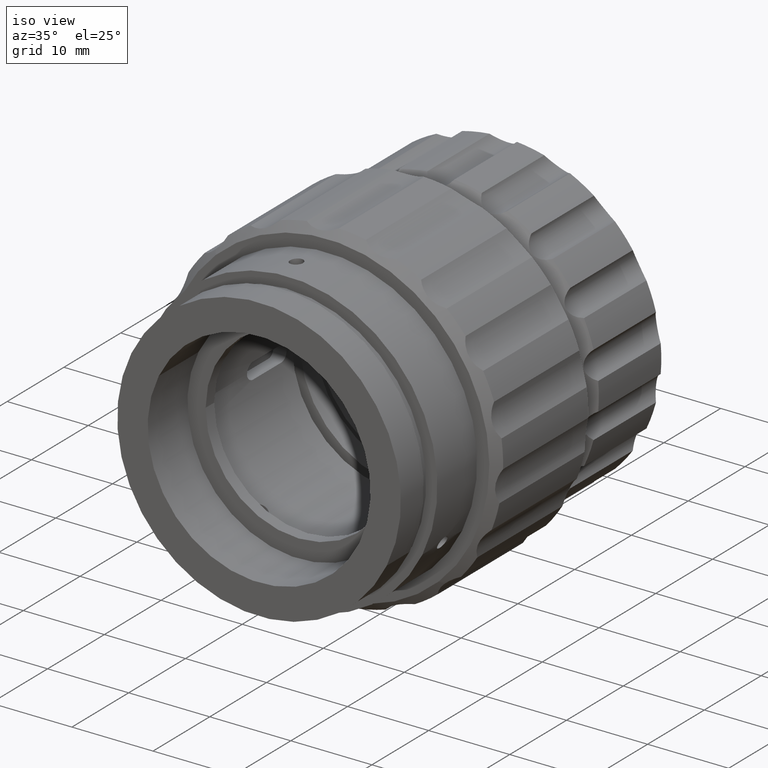
[diagram: clean part render]
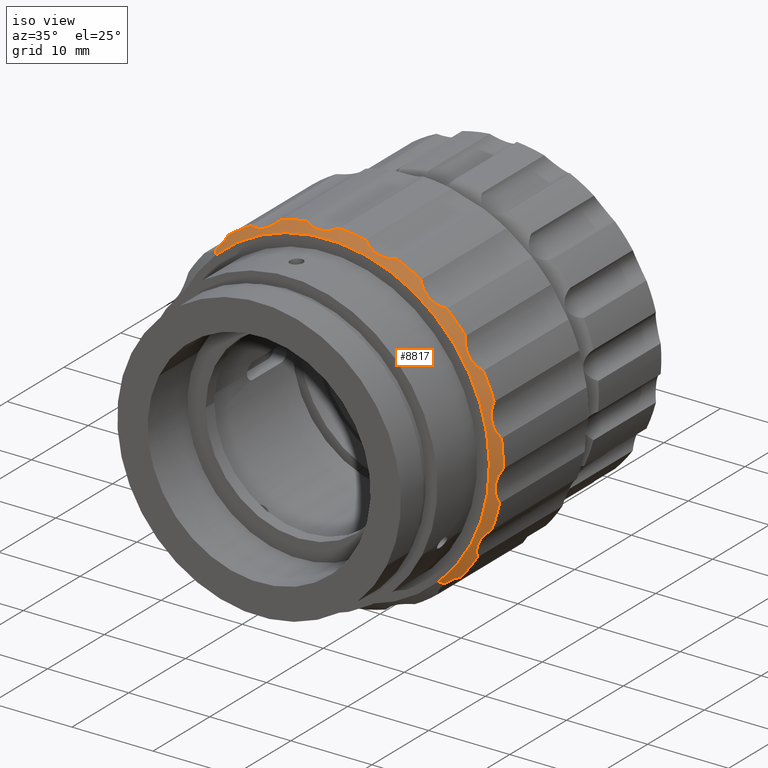
[diagram: same view with one face highlighted and labeled with its STEP entity id]
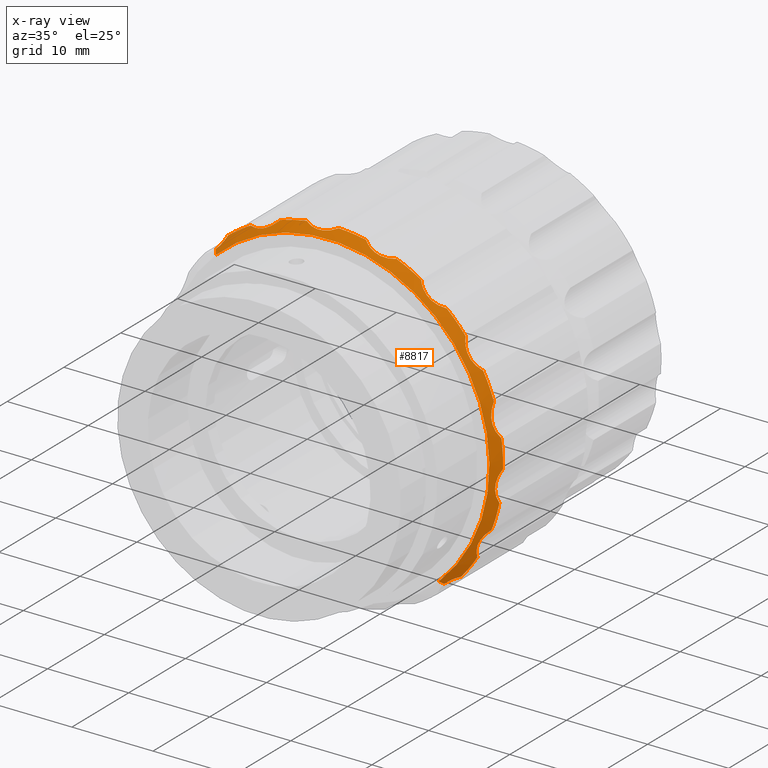
[diagram: x-ray of the same camera — body ghosted, the highlighted face saturated]
A machine part, iso view. The second image highlights one B-rep face of the part: STEP entity #8817.
The next image is the same camera in x-ray: the body ghosted, the highlighted face saturated — about 0% of this face is hidden behind the body in this view.
In plain terms, the highlighted conical surface has half-angle 45 deg.
Its self-contained STEP definition (entity closure, byte-faithful):
#10 = VERTEX_POINT ( 'NONE', #7143 ) ;
#18 = CARTESIAN_POINT ( 'NONE',  ( 26.96714775409374809, -22.54875568700542487, 44.46602370267738280 ) ) ;
#71 = CARTESIAN_POINT ( 'NONE',  ( 24.37982841098757092, -23.04893092694688406, 35.88031151399481189 ) ) ;
#72 = CARTESIAN_POINT ( 'NONE',  ( 21.62445197185772727, -22.62521251149066259, 31.01786103261689576 ) ) ;
#75 = CARTESIAN_POINT ( 'NONE',  ( 23.78273269738049578, -22.54875568700542487, 33.77823788892388279 ) ) ;
#96 = VERTEX_POINT ( 'NONE', #250 ) ;
#122 = CARTESIAN_POINT ( 'NONE',  ( 4.581780144730796422, -23.04893092694689472, 65.35670987261983100 ) ) ;
#147 = DIRECTION ( 'NONE',  ( 0.6871969081691013947, 0.000000000000000000, -0.7264712034229764415 ) ) ;
#169 = CARTESIAN_POINT ( 'NONE',  ( 13.83490158732221609, -22.54875568700542487, 64.37559641720199011 ) ) ;
#195 = CARTESIAN_POINT ( 'NONE',  ( -1.723779831415612751, -23.03084986932621092, 63.92598415447361759 ) ) ;
#222 = CARTESIAN_POINT ( 'NONE',  ( 20.73961185169606125, -22.95820946754227876, 30.55386880338712530 ) ) ;
#225 = CARTESIAN_POINT ( 'NONE',  ( 5.104940113431729820, -23.03694059444923070, 65.39751943230554332 ) ) ;
#250 = CARTESIAN_POINT ( 'NONE',  ( 13.83490158732221609, -22.54875568700542487, 64.37559641720199011 ) ) ;
#271 = CARTESIAN_POINT ( 'NONE',  ( 25.85052689210476018, -22.54875568700542487, 51.67326078198870931 ) ) ;
#293 = EDGE_CURVE ( 'NONE', #9819, #7025, #4316, .T. ) ;
#301 = CARTESIAN_POINT ( 'NONE',  ( 17.66046975826547794, -22.99213833844308752, 61.81416042555461132 ) ) ;
#302 = CARTESIAN_POINT ( 'NONE',  ( -2.009641123701243703, -23.05825398763309053, 63.77830332537708102 ) ) ;
#337 = ORIENTED_EDGE ( 'NONE', *, *, #3122, .T. ) ;
#353 = VERTEX_POINT ( 'NONE', #4032 ) ;
#357 = CARTESIAN_POINT ( 'NONE',  ( 24.15359054204219902, -23.03694059444922004, 35.40683691101386188 ) ) ;
#373 = CARTESIAN_POINT ( 'NONE',  ( 22.73940345115362760, -22.99213833844308752, 56.79651678062787568 ) ) ;
#446 = ORIENTED_EDGE ( 'NONE', *, *, #2005, .T. ) ;
#464 = CARTESIAN_POINT ( 'NONE',  ( 26.35572851109740355, -23.04893092694688761, 42.72041506153360046 ) ) ;
#488 = DIRECTION ( 'NONE',  ( 0.6871969081691013947, 0.000000000000000000, -0.7264712034229764415 ) ) ;
#548 = DIRECTION ( 'NONE',  ( 0.000000000000000000, -1.000000000000000000, -0.000000000000000000 ) ) ;
#680 = CARTESIAN_POINT ( 'NONE',  ( 21.77406639121481646, -22.54875568700542487, 31.07271540608443061 ) ) ;
#728 = AXIS2_PLACEMENT_3D ( 'NONE', #3789, #4500, #2922 ) ;
#765 = CARTESIAN_POINT ( 'NONE',  ( -7.642140704346006785, -22.99220811342353343, 60.30670107188694118 ) ) ;
#779 = CARTESIAN_POINT ( 'NONE',  ( 25.55140787947225434, -22.54875568700542487, 37.31152937573604333 ) ) ;
#782 = CARTESIAN_POINT ( 'NONE',  ( 12.50715101851027455, -22.99173279646783641, 64.39454974554864464 ) ) ;
#842 = AXIS2_PLACEMENT_3D ( 'NONE', #2671, #9758, #1105 ) ;
#905 = CARTESIAN_POINT ( 'NONE',  ( 17.54029753547036208, -22.95871898295860447, 61.93692785366522457 ) ) ;
#927 = CARTESIAN_POINT ( 'NONE',  ( 12.16664585492091000, -23.03694059444923070, 64.45801684555411271 ) ) ;
#928 = CARTESIAN_POINT ( 'NONE',  ( 4.055729949814518065, -22.99213833844308041, 65.37116788638181220 ) ) ;
#950 = CARTESIAN_POINT ( 'NONE',  ( 18.93377057816707065, -22.95779508110710054, 60.90329725052154686 ) ) ;
#953 = CARTESIAN_POINT ( 'NONE',  ( 5.971701014312827738, -22.54875568700542487, 44.90330644533106863 ) ) ;
#972 = CARTESIAN_POINT ( 'NONE',  ( 11.99741715147649579, -23.04857634177215431, 64.49868536004134967 ) ) ;
#975 = CARTESIAN_POINT ( 'NONE',  ( 24.51180884453873077, -22.54875568700542843, 54.76557807227362673 ) ) ;
#1051 = CARTESIAN_POINT ( 'NONE',  ( 18.33603630828612907, -23.04857634177213654, 61.25602311611555706 ) ) ;
#1100 = ORIENTED_EDGE ( 'NONE', *, *, #2109, .F. ) ;
#1105 = DIRECTION ( 'NONE',  ( 0.6871969081691015058, 0.000000000000000000, -0.7264712034229763304 ) ) ;
#1123 = B_SPLINE_CURVE_WITH_KNOTS ( 'NONE', 3,
 ( #3958, #3295, #7049, #1614 ),
 .UNSPECIFIED., .F., .F.,
 ( 4, 4 ),
 ( 4.574723477147716873E-07, 0.0003117507094537197996 ),
 .UNSPECIFIED. ) ;
#1127 = CARTESIAN_POINT ( 'NONE',  ( 24.24523722975539641, -22.70181177851246090, 54.94080023470031904 ) ) ;
#1158 = VERTEX_POINT ( 'NONE', #6270 ) ;
#1181 = CARTESIAN_POINT ( 'NONE',  ( 22.89964403311761743, -23.03731353386827863, 56.48751054524325355 ) ) ;
#1187 = ORIENTED_EDGE ( 'NONE', *, *, #6020, .T. ) ;
#1452 = VERTEX_POINT ( 'NONE', #3052 ) ;
#1477 = DIRECTION ( 'NONE',  ( -0.4859215937768002203, 0.7071067811865483499, 0.5136927142771378074 ) ) ;
#1554 = EDGE_CURVE ( 'NONE', #7025, #1452, #2488, .T. ) ;
#1569 = CARTESIAN_POINT ( 'NONE',  ( -7.988124514806902887, -23.04875568700542132, 59.91677292055827309 ) ) ;
#1581 = CARTESIAN_POINT ( 'NONE',  ( 26.18581821970001755, -22.95779508110709699, 48.82815278006143700 ) ) ;
#1584 = CARTESIAN_POINT ( 'NONE',  ( 24.22302746637473092, -23.04857634177214365, 35.56643263676901512 ) ) ;
#1614 = CARTESIAN_POINT ( 'NONE',  ( -0.7231094470177840128, -22.67704321055556704, 64.67216818763810693 ) ) ;
#1683 = CARTESIAN_POINT ( 'NONE',  ( 25.87301405888911532, -23.04893092694688761, 49.82380752600410290 ) ) ;
#1712 = CARTESIAN_POINT ( 'NONE',  ( -0.8320373059360943735, -22.73969801011140746, 64.56912915799806285 ) ) ;
#1737 = CARTESIAN_POINT ( 'NONE',  ( 11.01678416266043214, -22.95871898295861513, 64.86636782824672309 ) ) ;
#1768 = CARTESIAN_POINT ( 'NONE',  ( 24.65537451565187510, -22.99213833844309463, 36.32865533957706106 ) ) ;
#1770 = DIRECTION ( 'NONE',  ( 0.000000000000000000, -1.000000000000000000, -0.000000000000000000 ) ) ;
#1778 = CARTESIAN_POINT ( 'NONE',  ( 25.84079530073379516, -23.03731353386829284, 49.99920005819603830 ) ) ;
#1818 = AXIS2_PLACEMENT_3D ( 'NONE', #4346, #9743, #488 ) ;
#1834 = CARTESIAN_POINT ( 'NONE',  ( 20.18645683651990197, -23.04875568700542132, 30.13098828869214074 ) ) ;
#1945 = ORIENTED_EDGE ( 'NONE', *, *, #6403, .T. ) ;
#1967 = CARTESIAN_POINT ( 'NONE',  ( 26.30913429385233826, -22.95779508110709699, 41.67782032000739179 ) ) ;
#1982 = CARTESIAN_POINT ( 'NONE',  ( 23.98933331111183520, -22.82639049002026255, 55.14491391962122435 ) ) ;
#2005 = EDGE_CURVE ( 'NONE', #353, #5463, #4660, .T. ) ;
#2069 = ORIENTED_EDGE ( 'NONE', *, *, #4786, .T. ) ;
#2109 = EDGE_CURVE ( 'NONE', #6346, #7413, #5215, .T. ) ;
#2224 = LINE ( 'NONE', #6712, #3752 ) ;
#2291 = AXIS2_PLACEMENT_3D ( 'NONE', #953, #4756, #147 ) ;
#2326 = ORIENTED_EDGE ( 'NONE', *, *, #1554, .T. ) ;
#2330 = CARTESIAN_POINT ( 'NONE',  ( 25.77822952115835164, -22.81818094281916132, 51.02553444222788670 ) ) ;
#2332 = VERTEX_POINT ( 'NONE', #5613 ) ;
#2404 = VERTEX_POINT ( 'NONE', #3575 ) ;
#2413 = ORIENTED_EDGE ( 'NONE', *, *, #2785, .T. ) ;
#2454 = VECTOR ( 'NONE', #6553, 1000.000000000000000 ) ;
#2462 = CARTESIAN_POINT ( 'NONE',  ( 17.31479239831139694, -22.87192481522069087, 62.19181954022879921 ) ) ;
#2478 = AXIS2_PLACEMENT_3D ( 'NONE', #4250, #5819, #7385 ) ;
#2479 = CARTESIAN_POINT ( 'NONE',  ( -7.772237149069202822, -23.54875568700542487, 59.43273051379059524 ) ) ;
#2488 = B_SPLINE_CURVE_WITH_KNOTS ( 'NONE', 3,
 ( #6161, #8837, #3869, #4966, #7013, #357, #1584, #71, #8539, #1768, #7768, #3917, #7955, #5735, #4673, #779 ),
 .UNSPECIFIED., .F., .F.,
 ( 4, 2, 2, 2, 2, 2, 2, 4 ),
 ( 4.574723477260154673E-07, 0.001050828036897724204, 0.001576013319172721696, 0.002101198601447719621, 0.002626383883722717329, 0.003151569165997715038, 0.003676754448272712746, 0.004201939730547710021 ),
 .UNSPECIFIED. ) ;
#2526 = CARTESIAN_POINT ( 'NONE',  ( 26.88764276763581762, -22.62536031880735266, 44.32756536673588954 ) ) ;
#2539 = CARTESIAN_POINT ( 'NONE',  ( 10.17071046189307459, -22.62536031880736331, 65.40151165644928710 ) ) ;
#2540 = CARTESIAN_POINT ( 'NONE',  ( 3.381850998382214701, -22.81818094281916487, 65.47204301405244564 ) ) ;
#2565 = CARTESIAN_POINT ( 'NONE',  ( 18.48114982098426395, -23.03694059444922004, 61.15992758774674343 ) ) ;
#2616 = CARTESIAN_POINT ( 'NONE',  ( -3.545929084040576829, -22.80088657216805004, 63.33991907532846000 ) ) ;
#2629 = CARTESIAN_POINT ( 'NONE',  ( 26.96714775409374809, -22.54875568700542487, 44.46602370267738280 ) ) ;
#2671 = CARTESIAN_POINT ( 'NONE',  ( 5.971701014312827738, -23.54875568700542487, 44.90330644533106863 ) ) ;
#2735 = AXIS2_PLACEMENT_3D ( 'NONE', #4352, #548, #5199 ) ;
#2740 = B_SPLINE_CURVE_WITH_KNOTS ( 'NONE', 3,
 ( #169, #3872, #5442, #6411, #782, #927, #972, #8694, #9315, #9522, #1737, #4827, #4075, #7171, #2539, #7921 ),
 .UNSPECIFIED., .F., .F.,
 ( 4, 2, 2, 2, 2, 2, 2, 4 ),
 ( 4.574723477187013908E-07, 0.001050828036897713796, 0.001576013319172714106, 0.002101198601447714850, 0.002626383883722714727, 0.003151569165997715471, 0.003676754448272715348, 0.004201939730547716093 ),
 .UNSPECIFIED. ) ;
#2785 = EDGE_CURVE ( 'NONE', #96, #4761, #2740, .T. ) ;
#2897 = ORIENTED_EDGE ( 'NONE', *, *, #8322, .T. ) ;
#2902 = CARTESIAN_POINT ( 'NONE',  ( 5.971701014312827738, -22.54875568700542487, 44.90330644533106863 ) ) ;
#2922 = DIRECTION ( 'NONE',  ( 0.6871969081691013947, 0.000000000000000000, -0.7264712034229764415 ) ) ;
#2924 = AXIS2_PLACEMENT_3D ( 'NONE', #2902, #3003, #10036 ) ;
#2978 = EDGE_CURVE ( 'NONE', #7413, #9111, #2224, .T. ) ;
#2985 = CIRCLE ( 'NONE', #728, 21.00000000000000355 ) ;
#3003 = DIRECTION ( 'NONE',  ( 0.000000000000000000, -1.000000000000000000, -0.000000000000000000 ) ) ;
#3052 = CARTESIAN_POINT ( 'NONE',  ( 25.55140787947225434, -22.54875568700542487, 37.31152937573604333 ) ) ;
#3093 = ORIENTED_EDGE ( 'NONE', *, *, #2978, .F. ) ;
#3094 = AXIS2_PLACEMENT_3D ( 'NONE', #3201, #9414, #5541 ) ;
#3122 = EDGE_CURVE ( 'NONE', #9602, #8856, #4636, .T. ) ;
#3161 = EDGE_CURVE ( 'NONE', #6346, #1158, #7297, .T. ) ;
#3201 = CARTESIAN_POINT ( 'NONE',  ( 5.971701014312827738, -22.54875568700542487, 44.90330644533106863 ) ) ;
#3204 = CARTESIAN_POINT ( 'NONE',  ( 3.884759304662476875, -22.95871898295861158, 65.38796797664078042 ) ) ;
#3295 = CARTESIAN_POINT ( 'NONE',  ( -0.5861440687324585008, -22.59411617957066909, 64.80552906689753456 ) ) ;
#3309 = CARTESIAN_POINT ( 'NONE',  ( 26.40557318389066666, -22.82639049002025544, 48.36487623336692110 ) ) ;
#3330 = AXIS2_PLACEMENT_3D ( 'NONE', #4185, #7175, #7222 ) ;
#3391 = CARTESIAN_POINT ( 'NONE',  ( 26.67767499255236885, -22.81818094281915421, 43.88208719808861247 ) ) ;
#3406 = CARTESIAN_POINT ( 'NONE',  ( 2.756519383870494888, -22.54875568700542487, 65.65571852400920250 ) ) ;
#3447 = CARTESIAN_POINT ( 'NONE',  ( 20.40283608586396369, -22.54875568700542487, 29.64741117344856747 ) ) ;
#3462 = CARTESIAN_POINT ( 'NONE',  ( 22.33622624902998410, -22.54875568700542487, 58.06394145441422694 ) ) ;
#3552 = CARTESIAN_POINT ( 'NONE',  ( 26.38544056080650080, -23.03731353386828218, 42.89624959405737314 ) ) ;
#3575 = CARTESIAN_POINT ( 'NONE',  ( 26.76679908631471605, -22.54875568700542843, 47.82971997998799907 ) ) ;
#3593 = CIRCLE ( 'NONE', #3094, 21.00000000000000355 ) ;
#3668 = CARTESIAN_POINT ( 'NONE',  ( 23.28682964116116949, -23.03694059444923070, 55.90104989798838631 ) ) ;
#3698 = B_SPLINE_CURVE_WITH_KNOTS ( 'NONE', 3,
 ( #4428, #1127, #1982, #8905, #6765, #3668, #4228, #7311, #1181, #373, #6614, #4282, #7412, #5955, #8232, #3462 ),
 .UNSPECIFIED., .F., .F.,
 ( 4, 2, 2, 2, 2, 2, 2, 4 ),
 ( 4.574723477170291889E-07, 0.001050828036897727023, 0.001576013319172723647, 0.002101198601447720055, 0.002626383883722716462, 0.003151569165997713303, 0.003676754448272709710, 0.004201939730547706552 ),
 .UNSPECIFIED. ) ;
#3714 = VERTEX_POINT ( 'NONE', #975 ) ;
#3752 = VECTOR ( 'NONE', #1477, 1000.000000000000000 ) ;
#3789 = CARTESIAN_POINT ( 'NONE',  ( 5.971701014312827738, -22.54875568700542487, 44.90330644533106863 ) ) ;
#3807 = CARTESIAN_POINT ( 'NONE',  ( -8.115835603153543687, -23.04875568700585120, 59.79596611550180540 ) ) ;
#3849 = ORIENTED_EDGE ( 'NONE', *, *, #7258, .T. ) ;
#3852 = CARTESIAN_POINT ( 'NONE',  ( 22.33622624902998410, -22.54875568700542487, 58.06394145441422694 ) ) ;
#3854 = CARTESIAN_POINT ( 'NONE',  ( -7.086710590305400181, -22.70210709760292289, 61.15566884071682807 ) ) ;
#3869 = CARTESIAN_POINT ( 'NONE',  ( 23.85000941103615446, -22.82639049002025189, 34.42038289740119694 ) ) ;
#3872 = CARTESIAN_POINT ( 'NONE',  ( 13.51806524817382815, -22.70181177851246090, 64.33847544996341128 ) ) ;
#3917 = CARTESIAN_POINT ( 'NONE',  ( 24.96726989616200143, -22.87192481522068732, 36.73466090074310131 ) ) ;
#3958 = CARTESIAN_POINT ( 'NONE',  ( -0.5212846077454740268, -22.54875568700542487, 64.87431387389470672 ) ) ;
#4025 = ORIENTED_EDGE ( 'NONE', *, *, #293, .T. ) ;
#4032 = CARTESIAN_POINT ( 'NONE',  ( -0.7231094470177840128, -22.67704321055556704, 64.67216818763810693 ) ) ;
#4043 = VERTEX_POINT ( 'NONE', #7961 ) ;
#4075 = CARTESIAN_POINT ( 'NONE',  ( 10.57296029466256826, -22.81818094281916132, 65.11737729148836706 ) ) ;
#4076 = CARTESIAN_POINT ( 'NONE',  ( 6.415744510111759169, -22.70181177851245735, 65.74739991956390384 ) ) ;
#4084 = CIRCLE ( 'NONE', #9617, 21.00000000000000355 ) ;
#4127 = CARTESIAN_POINT ( 'NONE',  ( 25.78276088339968908, -22.95871898295861158, 50.51566696611504881 ) ) ;
#4154 = CARTESIAN_POINT ( 'NONE',  ( -2.927767309493298775, -22.97272656315720596, 63.45586561015058180 ) ) ;
#4185 = CARTESIAN_POINT ( 'NONE',  ( 5.971701014312827738, -22.54875568700542487, 44.90330644533106863 ) ) ;
#4215 = CARTESIAN_POINT ( 'NONE',  ( 26.31573671908812528, -23.04857634177214010, 42.37183631523386396 ) ) ;
#4228 = CARTESIAN_POINT ( 'NONE',  ( 23.18333415048806145, -23.04857634177214720, 56.04098190129859347 ) ) ;
#4250 = CARTESIAN_POINT ( 'NONE',  ( 5.971701014312827738, -22.54875568700542487, 44.90330644533106863 ) ) ;
#4282 = CARTESIAN_POINT ( 'NONE',  ( 22.54374001136113748, -22.87192481522068732, 57.26962888405567753 ) ) ;
#4316 = CIRCLE ( 'NONE', #3330, 21.00000000000000355 ) ;
#4321 = CARTESIAN_POINT ( 'NONE',  ( 26.30169751567655112, -22.99173279646781864, 41.85176349131922535 ) ) ;
#4346 = CARTESIAN_POINT ( 'NONE',  ( 5.971701014312827738, -22.54875568700542487, 44.90330644533106863 ) ) ;
#4352 = CARTESIAN_POINT ( 'NONE',  ( 5.971701014312827738, -22.54875568700542487, 44.90330644533106863 ) ) ;
#4370 = EDGE_CURVE ( 'NONE', #1452, #9602, #8263, .T. ) ;
#4428 = CARTESIAN_POINT ( 'NONE',  ( 24.51180884453873077, -22.54875568700542843, 54.76557807227362673 ) ) ;
#4452 = CONICAL_SURFACE ( 'NONE', #5745, 21.00000000000000355, 0.7853981633974471688 ) ;
#4459 = EDGE_LOOP ( 'NONE', ( #1100, #7647, #8404, #4025, #2326, #6320, #337, #5166, #5840, #1187, #3849, #6081, #5222, #2069, #2413, #6350, #4990, #2897, #1945, #446, #7486, #9252, #3093 ) ) ;
#4500 = DIRECTION ( 'NONE',  ( 0.000000000000000000, -1.000000000000000000, -0.000000000000000000 ) ) ;
#4620 = VERTEX_POINT ( 'NONE', #7420 ) ;
#4636 = B_SPLINE_CURVE_WITH_KNOTS ( 'NONE', 3,
 ( #5015, #5835, #8939, #1967, #4321, #7403, #4215, #464, #3552, #9507, #8065, #4861, #3391, #8779, #2526, #2629 ),
 .UNSPECIFIED., .F., .F.,
 ( 4, 2, 2, 2, 2, 2, 2, 4 ),
 ( 4.574723477308324378E-07, 0.001050828036897723987, 0.001576013319172722563, 0.002101198601447721356, 0.002626383883722719931, 0.003151569165997718074, 0.003676754448272716649, 0.004201939730547715225 ),
 .UNSPECIFIED. ) ;
#4659 = CARTESIAN_POINT ( 'NONE',  ( -8.115835603153543687, -23.04875568700585120, 59.79596611550180540 ) ) ;
#4660 = B_SPLINE_CURVE_WITH_KNOTS ( 'NONE', 3,
 ( #9392, #1712, #6330, #5623, #7141, #195, #302, #6483, #8006, #4154, #8610, #9600, #2616, #9549, #4805, #8828 ),
 .UNSPECIFIED., .F., .F.,
 ( 4, 2, 2, 2, 2, 2, 2, 4 ),
 ( 0.0003117507094537197996, 0.0007980243370904563935, 0.001284297964727193313, 0.002256845220000686884, 0.002743118847637433886, 0.003229392475274181322, 0.003715666102910928758, 0.004201939730547676194 ),
 .UNSPECIFIED. ) ;
#4670 = CARTESIAN_POINT ( 'NONE',  ( 26.76679908631471605, -22.54875568700542843, 47.82971997998799907 ) ) ;
#4673 = CARTESIAN_POINT ( 'NONE',  ( 25.42934209047872685, -22.62536031880736687, 37.20861340602899503 ) ) ;
#4710 = DIRECTION ( 'NONE',  ( 0.6871969081691013947, 0.000000000000000000, -0.7264712034229764415 ) ) ;
#4721 = FACE_OUTER_BOUND ( 'NONE', #4459, .T. ) ;
#4729 = CIRCLE ( 'NONE', #1818, 21.00000000000000355 ) ;
#4756 = DIRECTION ( 'NONE',  ( 0.000000000000000000, -1.000000000000000000, -0.000000000000000000 ) ) ;
#4761 = VERTEX_POINT ( 'NONE', #6157 ) ;
#4775 = CARTESIAN_POINT ( 'NONE',  ( 25.79590476522655607, -22.99213833844309463, 50.34437644417371160 ) ) ;
#4776 = CARTESIAN_POINT ( 'NONE',  ( 5.971701014312827738, -22.54875568700542487, 44.90330644533106863 ) ) ;
#4781 = CARTESIAN_POINT ( 'NONE',  ( 3.548171129511904276, -22.87192481522069798, 65.43827442864358090 ) ) ;
#4786 = EDGE_CURVE ( 'NONE', #10, #96, #8276, .T. ) ;
#4805 = CARTESIAN_POINT ( 'NONE',  ( -3.999492946387804171, -22.61968458287763539, 63.30488604135489794 ) ) ;
#4827 = CARTESIAN_POINT ( 'NONE',  ( 10.71770055815184186, -22.87192481522068377, 65.02876036587835529 ) ) ;
#4861 = CARTESIAN_POINT ( 'NONE',  ( 26.61553824015348724, -22.87192481522068377, 43.72415769678872977 ) ) ;
#4923 = EDGE_CURVE ( 'NONE', #2404, #8272, #5615, .T. ) ;
#4930 = CARTESIAN_POINT ( 'NONE',  ( 21.17811758413408896, -22.81773629560955996, 30.81205102822070074 ) ) ;
#4955 = CARTESIAN_POINT ( 'NONE',  ( 18.05415415477585128, -23.04893092694687695, 61.46494639708834029 ) ) ;
#4966 = CARTESIAN_POINT ( 'NONE',  ( 23.97945576594370465, -22.95779508110710054, 34.91652908977274450 ) ) ;
#4990 = ORIENTED_EDGE ( 'NONE', *, *, #7084, .T. ) ;
#5015 = CARTESIAN_POINT ( 'NONE',  ( 26.51359359764580859, -22.54875568700542487, 40.54089322615874380 ) ) ;
#5166 = ORIENTED_EDGE ( 'NONE', *, *, #9410, .T. ) ;
#5199 = DIRECTION ( 'NONE',  ( 0.6871969081691013947, 0.000000000000000000, -0.7264712034229764415 ) ) ;
#5215 = CIRCLE ( 'NONE', #842, 20.00000000000000355 ) ;
#5222 = ORIENTED_EDGE ( 'NONE', *, *, #5229, .T. ) ;
#5226 = CIRCLE ( 'NONE', #2291, 21.00000000000000355 ) ;
#5229 = EDGE_CURVE ( 'NONE', #8993, #10, #6102, .T. ) ;
#5410 = CIRCLE ( 'NONE', #2478, 21.00000000000000355 ) ;
#5425 = CARTESIAN_POINT ( 'NONE',  ( -7.867960086869544512, -23.03724811655154525, 60.04316534937562722 ) ) ;
#5442 = CARTESIAN_POINT ( 'NONE',  ( 13.19082972568994450, -22.82639049002026610, 64.33034373588725430 ) ) ;
#5463 = VERTEX_POINT ( 'NONE', #10050 ) ;
#5489 = CARTESIAN_POINT ( 'NONE',  ( 21.47535113528789452, -22.69469664914993245, 30.95511550888710417 ) ) ;
#5492 = CARTESIAN_POINT ( 'NONE',  ( 4.932007698426094322, -23.04857634177215431, 65.37785570986059724 ) ) ;
#5537 = CARTESIAN_POINT ( 'NONE',  ( 26.11933786574321559, -22.99173279646783286, 48.98906236664169711 ) ) ;
#5541 = DIRECTION ( 'NONE',  ( 0.6871969081691013947, 0.000000000000000000, -0.7264712034229764415 ) ) ;
#5599 = CARTESIAN_POINT ( 'NONE',  ( 5.616626530349977386, -22.95779508110709344, 65.49186820314248791 ) ) ;
#5613 = CARTESIAN_POINT ( 'NONE',  ( -6.960196484679476825, -22.54875568700542843, 61.44918288254516625 ) ) ;
#5615 = B_SPLINE_CURVE_WITH_KNOTS ( 'NONE', 3,
 ( #4670, #9469, #3309, #1581, #5537, #6405, #8638, #1683, #1778, #4775, #4127, #5640, #2330, #7112, #7868, #271 ),
 .UNSPECIFIED., .F., .F.,
 ( 4, 2, 2, 2, 2, 2, 2, 4 ),
 ( 4.574723477263975321E-07, 0.001050828036897724638, 0.001576013319172722129, 0.002101198601447719621, 0.002626383883722717329, 0.003151569165997715038, 0.003676754448272712746, 0.004201939730547710888 ),
 .UNSPECIFIED. ) ;
#5623 = CARTESIAN_POINT ( 'NONE',  ( -1.190552228959233627, -22.89299297332935268, 64.27814283824676522 ) ) ;
#5640 = CARTESIAN_POINT ( 'NONE',  ( 25.77385514411945522, -22.87192481522069443, 50.85587723429073748 ) ) ;
#5721 = CARTESIAN_POINT ( 'NONE',  ( 25.85052689210476018, -22.54875568700542487, 51.67326078198870931 ) ) ;
#5735 = CARTESIAN_POINT ( 'NONE',  ( 25.31047010106554396, -22.69496540806595064, 37.09842994909958236 ) ) ;
#5745 = AXIS2_PLACEMENT_3D ( 'NONE', #4776, #7817, #9470 ) ;
#5819 = DIRECTION ( 'NONE',  ( 0.000000000000000000, -1.000000000000000000, -0.000000000000000000 ) ) ;
#5835 = CARTESIAN_POINT ( 'NONE',  ( 26.42201852839815857, -22.70181177851245380, 40.84647012107388520 ) ) ;
#5840 = ORIENTED_EDGE ( 'NONE', *, *, #4923, .T. ) ;
#5955 = CARTESIAN_POINT ( 'NONE',  ( 22.40030687682570232, -22.69496540806594709, 57.74873350426444318 ) ) ;
#5965 = EDGE_CURVE ( 'NONE', #1158, #9819, #9126, .T. ) ;
#6020 = EDGE_CURVE ( 'NONE', #8272, #3714, #3593, .T. ) ;
#6081 = ORIENTED_EDGE ( 'NONE', *, *, #6905, .T. ) ;
#6102 = B_SPLINE_CURVE_WITH_KNOTS ( 'NONE', 3,
 ( #7945, #8879, #7140, #950, #7094, #2565, #1051, #4955, #9655, #301, #905, #2462, #8668, #6383, #6482, #8766 ),
 .UNSPECIFIED., .F., .F.,
 ( 4, 2, 2, 2, 2, 2, 2, 4 ),
 ( 4.574723492267008813E-07, 0.001050828036899234064, 0.001576013319174237193, 0.002101198601449240106, 0.002626383883724243452, 0.003151569165999246365, 0.003676754448274249711, 0.004201939730549236578 ),
 .UNSPECIFIED. ) ;
#6157 = CARTESIAN_POINT ( 'NONE',  ( 10.04816151520260270, -22.54875568700542487, 65.50385182123521588 ) ) ;
#6161 = CARTESIAN_POINT ( 'NONE',  ( 23.78273269738049578, -22.54875568700542487, 33.77823788892388279 ) ) ;
#6255 = CARTESIAN_POINT ( 'NONE',  ( 21.02928114039849916, -22.87142862954834044, 30.73121794318547018 ) ) ;
#6270 = CARTESIAN_POINT ( 'NONE',  ( 20.05923763177920449, -23.04875568700585475, 30.01064677516033541 ) ) ;
#6320 = ORIENTED_EDGE ( 'NONE', *, *, #4370, .T. ) ;
#6330 = CARTESIAN_POINT ( 'NONE',  ( -0.9470438286994390387, -22.79575936628023314, 64.46958993440084384 ) ) ;
#6341 = EDGE_CURVE ( 'NONE', #5463, #2332, #4084, .T. ) ;
#6346 = VERTEX_POINT ( 'NONE', #9454 ) ;
#6350 = ORIENTED_EDGE ( 'NONE', *, *, #6734, .T. ) ;
#6357 = CARTESIAN_POINT ( 'NONE',  ( 21.77406639121481646, -22.54875568700542487, 31.07271540608443061 ) ) ;
#6383 = CARTESIAN_POINT ( 'NONE',  ( 17.01614590934047300, -22.69496540806594709, 62.59297359519194970 ) ) ;
#6403 = EDGE_CURVE ( 'NONE', #6831, #353, #1123, .T. ) ;
#6405 = CARTESIAN_POINT ( 'NONE',  ( 26.00404940485784877, -23.03694059444923070, 49.31568203843260534 ) ) ;
#6409 = CARTESIAN_POINT ( 'NONE',  ( 20.05923763177920449, -23.04875568700585475, 30.01064677516033541 ) ) ;
#6411 = CARTESIAN_POINT ( 'NONE',  ( 12.67974298517962950, -22.95779508110710765, 64.37166862763770325 ) ) ;
#6482 = CARTESIAN_POINT ( 'NONE',  ( 16.92827829103995896, -22.62536031880736687, 62.72917280848687227 ) ) ;
#6483 = CARTESIAN_POINT ( 'NONE',  ( -2.465273176354757290, -23.03967514796449834, 63.59733004851311478 ) ) ;
#6551 = B_SPLINE_CURVE_WITH_KNOTS ( 'NONE', 3,
 ( #8471, #3854, #7802, #8827, #765, #5425, #1569, #4659 ),
 .UNSPECIFIED., .F., .F.,
 ( 4, 2, 2, 4 ),
 ( 4.574723477181721011E-07, 0.001052854708797686329, 0.001579053327022678001, 0.002105251945247671626 ),
 .UNSPECIFIED. ) ;
#6553 = DIRECTION ( 'NONE',  ( 0.4859215937768002758, 0.7071067811865483499, -0.5136927142771378074 ) ) ;
#6614 = CARTESIAN_POINT ( 'NONE',  ( 22.66846743352773075, -22.95871898295861158, 56.95298174776044675 ) ) ;
#6712 = CARTESIAN_POINT ( 'NONE',  ( -8.459434057238302884, -22.54875568700542487, 60.15920171721357690 ) ) ;
#6728 = CARTESIAN_POINT ( 'NONE',  ( 26.51359359764580859, -22.54875568700542487, 40.54089322615874380 ) ) ;
#6734 = EDGE_CURVE ( 'NONE', #4761, #4620, #5226, .T. ) ;
#6765 = CARTESIAN_POINT ( 'NONE',  ( 23.50687586407583396, -22.99173279646782930, 55.63355877851874709 ) ) ;
#6781 = CARTESIAN_POINT ( 'NONE',  ( -0.5212846077454740268, -22.54875568700542487, 64.87431387389470672 ) ) ;
#6831 = VERTEX_POINT ( 'NONE', #6781 ) ;
#6905 = EDGE_CURVE ( 'NONE', #7722, #8993, #4729, .T. ) ;
#7013 = CARTESIAN_POINT ( 'NONE',  ( 24.03195954875208074, -22.99173279646782220, 35.08252573222812742 ) ) ;
#7025 = VERTEX_POINT ( 'NONE', #75 ) ;
#7049 = CARTESIAN_POINT ( 'NONE',  ( -0.6533781190440633990, -22.63693407391833645, 64.73812971888708034 ) ) ;
#7084 = EDGE_CURVE ( 'NONE', #4620, #4043, #8496, .T. ) ;
#7094 = CARTESIAN_POINT ( 'NONE',  ( 18.77941298390832614, -22.99173279646782220, 60.98382839735489824 ) ) ;
#7112 = CARTESIAN_POINT ( 'NONE',  ( 25.80293551689209508, -22.69496540806593998, 51.35514533171678409 ) ) ;
#7118 = CARTESIAN_POINT ( 'NONE',  ( 6.111024914388428542, -22.82639049002025544, 65.62783746755101788 ) ) ;
#7140 = CARTESIAN_POINT ( 'NONE',  ( 19.39990107140675946, -22.82639049002025544, 60.68966259444772504 ) ) ;
#7141 = CARTESIAN_POINT ( 'NONE',  ( -1.320116429180307582, -22.93439995369109496, 64.18556821756179431 ) ) ;
#7143 = CARTESIAN_POINT ( 'NONE',  ( 16.84812234797788122, -22.54875568700542487, 62.86725531445769377 ) ) ;
#7171 = CARTESIAN_POINT ( 'NONE',  ( 10.29986188886807064, -22.69496540806594354, 65.30357875616402907 ) ) ;
#7172 = CARTESIAN_POINT ( 'NONE',  ( 5.446617329636502802, -22.99173279646783286, 65.45433949162165277 ) ) ;
#7175 = DIRECTION ( 'NONE',  ( 0.000000000000000000, -1.000000000000000000, -0.000000000000000000 ) ) ;
#7222 = DIRECTION ( 'NONE',  ( 0.6871969081691013947, 0.000000000000000000, -0.7264712034229764415 ) ) ;
#7258 = EDGE_CURVE ( 'NONE', #3714, #7722, #3698, .T. ) ;
#7264 = CARTESIAN_POINT ( 'NONE',  ( 3.061537790072915488, -22.69496540806594709, 65.55361000049583708 ) ) ;
#7297 = LINE ( 'NONE', #3447, #2454 ) ;
#7311 = CARTESIAN_POINT ( 'NONE',  ( 22.98990754140558579, -23.04893092694687340, 56.33371494128360979 ) ) ;
#7385 = DIRECTION ( 'NONE',  ( 0.6871969081691013947, 0.000000000000000000, -0.7264712034229764415 ) ) ;
#7403 = CARTESIAN_POINT ( 'NONE',  ( 26.30507230667972962, -23.03694059444922715, 42.19811656262049127 ) ) ;
#7412 = CARTESIAN_POINT ( 'NONE',  ( 22.48982439861022442, -22.81818094281915776, 57.43055063547916461 ) ) ;
#7413 = VERTEX_POINT ( 'NONE', #2479 ) ;
#7420 = CARTESIAN_POINT ( 'NONE',  ( 6.700777161470981902, -22.54875568700542132, 65.89064662868076994 ) ) ;
#7486 = ORIENTED_EDGE ( 'NONE', *, *, #6341, .T. ) ;
#7647 = ORIENTED_EDGE ( 'NONE', *, *, #3161, .T. ) ;
#7722 = VERTEX_POINT ( 'NONE', #3852 ) ;
#7768 = CARTESIAN_POINT ( 'NONE',  ( 24.75540914317802077, -22.95871898295861868, 36.46832021645066391 ) ) ;
#7802 = CARTESIAN_POINT ( 'NONE',  ( -7.243644349763088464, -22.82687343875511132, 60.86766424235284489 ) ) ;
#7817 = DIRECTION ( 'NONE',  ( 0.000000000000000000, 1.000000000000000000, 0.000000000000000000 ) ) ;
#7868 = CARTESIAN_POINT ( 'NONE',  ( 25.82317218291790439, -22.62536031880736687, 51.51596019855477948 ) ) ;
#7875 = CARTESIAN_POINT ( 'NONE',  ( 6.700777161470981902, -22.54875568700542132, 65.89064662868076994 ) ) ;
#7908 = CARTESIAN_POINT ( 'NONE',  ( 5.971701014312827738, -22.54875568700542487, 44.90330644533106863 ) ) ;
#7919 = CARTESIAN_POINT ( 'NONE',  ( 20.59808288178473745, -22.99166311588373190, 30.45710769822380826 ) ) ;
#7921 = CARTESIAN_POINT ( 'NONE',  ( 10.04816151520260270, -22.54875568700542487, 65.50385182123521588 ) ) ;
#7945 = CARTESIAN_POINT ( 'NONE',  ( 20.02060797558757343, -22.54875568700542843, 60.51190065472245294 ) ) ;
#7955 = CARTESIAN_POINT ( 'NONE',  ( 25.07967441454076507, -22.81818094281916487, 36.86181406675773076 ) ) ;
#7961 = CARTESIAN_POINT ( 'NONE',  ( 2.756519383870494888, -22.54875568700542487, 65.65571852400920250 ) ) ;
#7973 = CARTESIAN_POINT ( 'NONE',  ( 20.32204832263214200, -23.03700209030282409, 30.24625293724757213 ) ) ;
#7977 = CARTESIAN_POINT ( 'NONE',  ( 2.906680122588682025, -22.62536031880736331, 65.60146443466135224 ) ) ;
#8006 = CARTESIAN_POINT ( 'NONE',  ( -2.619959736176024290, -23.02340400467829440, 63.54461650489573543 ) ) ;
#8065 = CARTESIAN_POINT ( 'NONE',  ( 26.50754813295544920, -22.95871898295860802, 43.40141867604339865 ) ) ;
#8232 = CARTESIAN_POINT ( 'NONE',  ( 22.36432119875464153, -22.62536031880736331, 57.90677139535930706 ) ) ;
#8263 = CIRCLE ( 'NONE', #2735, 21.00000000000000355 ) ;
#8272 = VERTEX_POINT ( 'NONE', #5721 ) ;
#8276 = CIRCLE ( 'NONE', #2924, 21.00000000000000355 ) ;
#8322 = EDGE_CURVE ( 'NONE', #4043, #6831, #5410, .T. ) ;
#8404 = ORIENTED_EDGE ( 'NONE', *, *, #5965, .T. ) ;
#8471 = CARTESIAN_POINT ( 'NONE',  ( -6.960196484679476825, -22.54875568700542843, 61.44918288254516625 ) ) ;
#8496 = B_SPLINE_CURVE_WITH_KNOTS ( 'NONE', 3,
 ( #7875, #4076, #7118, #5599, #7172, #225, #5492, #122, #8695, #928, #3204, #4781, #2540, #7264, #7977, #3406 ),
 .UNSPECIFIED., .F., .F.,
 ( 4, 2, 2, 2, 2, 2, 2, 4 ),
 ( 4.574723477174520172E-07, 0.001050828036897712061, 0.001576013319172706951, 0.002101198601447701840, 0.002626383883722696946, 0.003151569165997691619, 0.003676754448272686725, 0.004201939730547681398 ),
 .UNSPECIFIED. ) ;
#8539 = CARTESIAN_POINT ( 'NONE',  ( 24.46788755686300831, -23.03731353386828573, 36.03537980718672884 ) ) ;
#8610 = CARTESIAN_POINT ( 'NONE',  ( -3.081959351282488324, -22.93828675366111014, 63.41939485134910370 ) ) ;
#8638 = CARTESIAN_POINT ( 'NONE',  ( 25.95465501981571421, -23.04857634177215076, 49.48257265190858334 ) ) ;
#8668 = CARTESIAN_POINT ( 'NONE',  ( 17.20908981437813168, -22.81818094281916132, 62.32459629696486303 ) ) ;
#8694 = CARTESIAN_POINT ( 'NONE',  ( 11.66107860138928132, -23.04893092694688050, 64.59859965093728817 ) ) ;
#8695 = CARTESIAN_POINT ( 'NONE',  ( 4.403457490567378230, -23.03731353386829284, 65.35543718338755070 ) ) ;
#8766 = CARTESIAN_POINT ( 'NONE',  ( 16.84812234797788122, -22.54875568700542487, 62.86725531445769377 ) ) ;
#8779 = CARTESIAN_POINT ( 'NONE',  ( 26.81362459809722409, -22.69496540806594354, 44.18337017047014825 ) ) ;
#8817 = ADVANCED_FACE ( 'NONE', ( #4721 ), #4452, .T. ) ;
#8827 = CARTESIAN_POINT ( 'NONE',  ( -7.535760267474191032, -22.95831360585714620, 60.44493480536283414 ) ) ;
#8828 = CARTESIAN_POINT ( 'NONE',  ( -4.147324391803083543, -22.54875568700542487, 63.30453805711130855 ) ) ;
#8837 = CARTESIAN_POINT ( 'NONE',  ( 23.80119373395640281, -22.70181177851246090, 34.09670676046741988 ) ) ;
#8856 = VERTEX_POINT ( 'NONE', #18 ) ;
#8879 = CARTESIAN_POINT ( 'NONE',  ( 19.71018308715769152, -22.70181177851245735, 60.58538276585824178 ) ) ;
#8905 = CARTESIAN_POINT ( 'NONE',  ( 23.62438128198092357, -22.95779508110710410, 55.50509084758422773 ) ) ;
#8939 = CARTESIAN_POINT ( 'NONE',  ( 26.35718650118349160, -22.82639049002025189, 41.16732214334637519 ) ) ;
#8993 = VERTEX_POINT ( 'NONE', #9620 ) ;
#9111 = VERTEX_POINT ( 'NONE', #3807 ) ;
#9126 = B_SPLINE_CURVE_WITH_KNOTS ( 'NONE', 3,
 ( #6409, #1834, #7973, #7919, #222, #6255, #4930, #5489, #72, #6357 ),
 .UNSPECIFIED., .F., .F.,
 ( 4, 2, 2, 2, 4 ),
 ( 0.002105251945247679432, 0.002629423891572685995, 0.003153595837897692124, 0.003677767784222698254, 0.004201939730547704817 ),
 .UNSPECIFIED. ) ;
#9245 = EDGE_CURVE ( 'NONE', #2332, #9111, #6551, .T. ) ;
#9252 = ORIENTED_EDGE ( 'NONE', *, *, #9245, .T. ) ;
#9315 = CARTESIAN_POINT ( 'NONE',  ( 11.49307483379933359, -23.03731353386829284, 64.65839365399234850 ) ) ;
#9392 = CARTESIAN_POINT ( 'NONE',  ( -0.7231094470177840128, -22.67704321055556704, 64.67216818763810693 ) ) ;
#9410 = EDGE_CURVE ( 'NONE', #8856, #2404, #2985, .T. ) ;
#9414 = DIRECTION ( 'NONE',  ( 0.000000000000000000, -1.000000000000000000, -0.000000000000000000 ) ) ;
#9454 = CARTESIAN_POINT ( 'NONE',  ( 19.71563917769486096, -23.54875568700542487, 30.37388237687154202 ) ) ;
#9469 = CARTESIAN_POINT ( 'NONE',  ( 26.57623321609886347, -22.70181177851246090, 48.08554781491326935 ) ) ;
#9470 = DIRECTION ( 'NONE',  ( -0.6871969081691013947, 0.000000000000000000, 0.7264712034229764415 ) ) ;
#9507 = CARTESIAN_POINT ( 'NONE',  ( 26.46131453285194013, -22.99213833844307686, 43.23596276421825735 ) ) ;
#9522 = CARTESIAN_POINT ( 'NONE',  ( 11.17169804700255575, -22.99213833844309107, 64.79210550284244619 ) ) ;
#9549 = CARTESIAN_POINT ( 'NONE',  ( -3.849752806613738088, -22.68460864390044307, 63.31177112413989505 ) ) ;
#9600 = CARTESIAN_POINT ( 'NONE',  ( -3.390935056502712985, -22.85245896947732547, 63.36138353499843845 ) ) ;
#9602 = VERTEX_POINT ( 'NONE', #6728 ) ;
#9617 = AXIS2_PLACEMENT_3D ( 'NONE', #7908, #1770, #4710 ) ;
#9620 = CARTESIAN_POINT ( 'NONE',  ( 20.02060797558757343, -22.54875568700542843, 60.51190065472245294 ) ) ;
#9655 = CARTESIAN_POINT ( 'NONE',  ( 17.91673300760224663, -23.03731353386828573, 61.57859505319679272 ) ) ;
#9743 = DIRECTION ( 'NONE',  ( 0.000000000000000000, -1.000000000000000000, -0.000000000000000000 ) ) ;
#9758 = DIRECTION ( 'NONE',  ( 0.000000000000000000, -1.000000000000000000, -0.000000000000000000 ) ) ;
#9819 = VERTEX_POINT ( 'NONE', #680 ) ;
#10036 = DIRECTION ( 'NONE',  ( 0.6871969081691013947, 0.000000000000000000, -0.7264712034229764415 ) ) ;
#10050 = CARTESIAN_POINT ( 'NONE',  ( -4.147324391803083543, -22.54875568700542487, 63.30453805711130855 ) ) ;